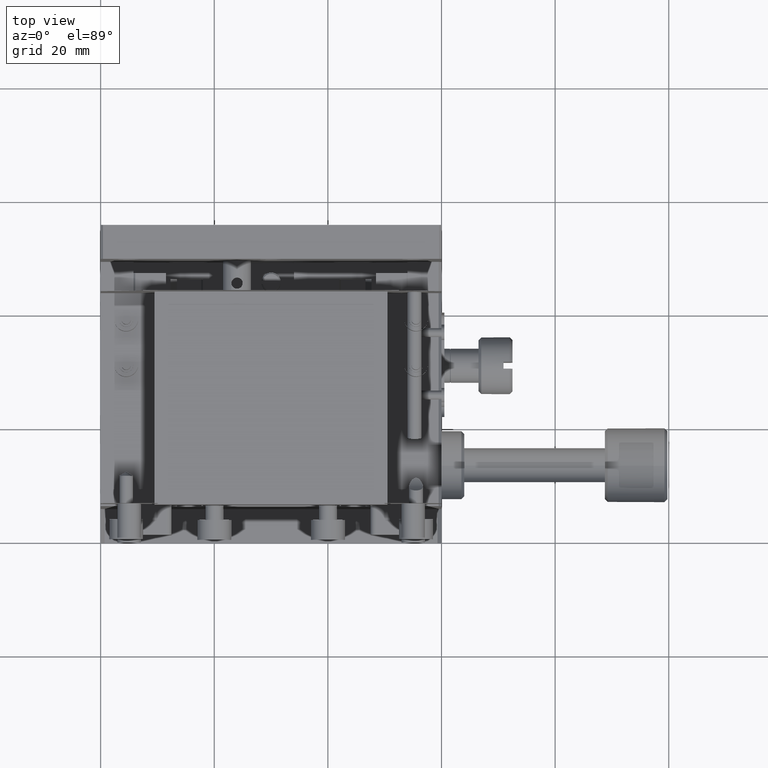
[diagram: clean part render]
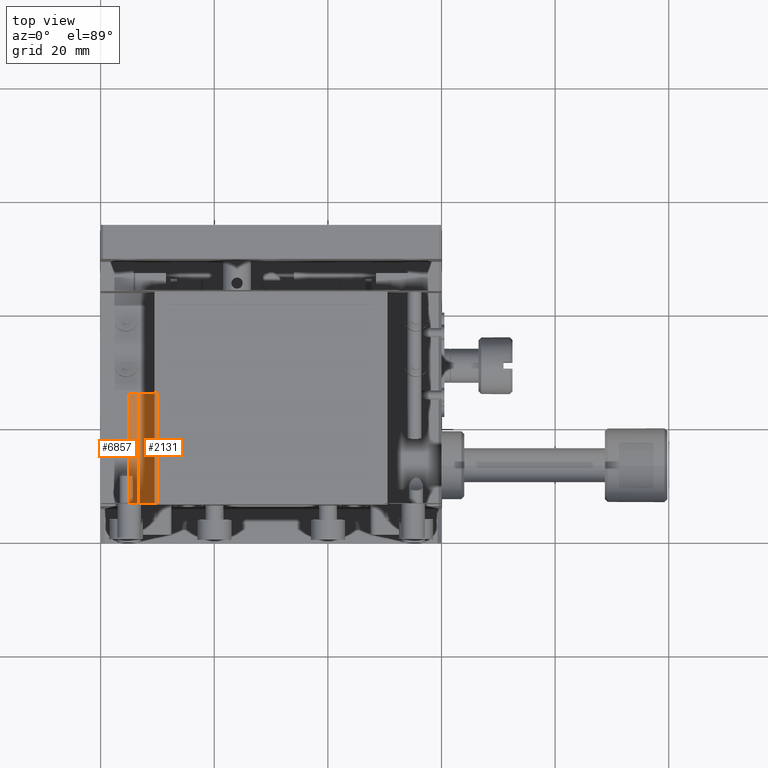
[diagram: same view with one multi-face feature highlighted, each face labeled with its STEP entity id]
A machine part, top view. The highlighted faces form ONE feature: a constant-radius fillet chain: 2 tangent blend faces with common blend radius 5 mm. The faces share edges in the B-rep.
Their STEP definitions:
[1] entity #2131 (Cylinder):
#131 = CARTESIAN_POINT ( 'NONE',  ( 5.000000000000000000, 25.50000000000000355, -4.999912287068750238 ) ) ;
#165 = AXIS2_PLACEMENT_3D ( 'NONE', #131, #1061, #10888 ) ;
#1061 = DIRECTION ( 'NONE',  ( 0.000000000000000000, -1.000000000000000000, 0.000000000000000000 ) ) ;
#1085 = ORIENTED_EDGE ( 'NONE', *, *, #5131, .T. ) ;
#1125 = EDGE_CURVE ( 'NONE', #11560, #10061, #11337, .T. ) ;
#1685 = CARTESIAN_POINT ( 'NONE',  ( 10.00000000000000000, 25.50000000000000355, -4.999912286938879014 ) ) ;
#1870 = CYLINDRICAL_SURFACE ( 'NONE', #2854, 5.000000000000000000 ) ;
#1951 = ORIENTED_EDGE ( 'NONE', *, *, #5440, .T. ) ;
#2095 = DIRECTION ( 'NONE',  ( 3.469446951953614189E-15, 0.000000000000000000, -1.000000000000000000 ) ) ;
#2118 = AXIS2_PLACEMENT_3D ( 'NONE', #7321, #7439, #2095 ) ;
#2131 = ADVANCED_FACE ( 'NONE', ( #2584 ), #1870, .T. ) ;
#2399 = CARTESIAN_POINT ( 'NONE',  ( 6.600000014693935491, 25.50000000000000355, -9.736999995036528688 ) ) ;
#2584 = FACE_OUTER_BOUND ( 'NONE', #3017, .T. ) ;
#2591 = VERTEX_POINT ( 'NONE', #2399 ) ;
#2732 = VERTEX_POINT ( 'NONE', #1685 ) ;
#2793 = EDGE_CURVE ( 'NONE', #2732, #11560, #10219, .T. ) ;
#2854 = AXIS2_PLACEMENT_3D ( 'NONE', #9935, #10777, #5403 ) ;
#3017 = EDGE_LOOP ( 'NONE', ( #7105, #5356, #1085, #1951 ) ) ;
#3416 = VECTOR ( 'NONE', #8326, 1000.000000000000000 ) ;
#4617 = CARTESIAN_POINT ( 'NONE',  ( 6.600000014719038965, 25.50000000000000355, -9.736999995028048360 ) ) ;
#5131 = EDGE_CURVE ( 'NONE', #10061, #2591, #10919, .T. ) ;
#5210 = CIRCLE ( 'NONE', #165, 5.000000000000000000 ) ;
#5356 = ORIENTED_EDGE ( 'NONE', *, *, #1125, .T. ) ;
#5403 = DIRECTION ( 'NONE',  ( 0.000000000000000000, 0.000000000000000000, -1.000000000000000000 ) ) ;
#5440 = EDGE_CURVE ( 'NONE', #2591, #2732, #5210, .T. ) ;
#6761 = CARTESIAN_POINT ( 'NONE',  ( 6.600000014693935491, 5.999999999999998224, -9.736999995036528688 ) ) ;
#7087 = VECTOR ( 'NONE', #10030, 1000.000000000000000 ) ;
#7105 = ORIENTED_EDGE ( 'NONE', *, *, #2793, .T. ) ;
#7321 = CARTESIAN_POINT ( 'NONE',  ( 5.000000000000000000, 5.999999999999998224, -4.999912287068750238 ) ) ;
#7439 = DIRECTION ( 'NONE',  ( -0.000000000000000000, 1.000000000000000000, -0.000000000000000000 ) ) ;
#8326 = DIRECTION ( 'NONE',  ( 0.000000000000000000, -1.000000000000000000, 0.000000000000000000 ) ) ;
#9279 = CARTESIAN_POINT ( 'NONE',  ( 10.00000000000000000, 25.50000000000000355, -4.999912286809009565 ) ) ;
#9935 = CARTESIAN_POINT ( 'NONE',  ( 5.000000000000000000, 25.50000000000000355, -4.999912287068750238 ) ) ;
#10030 = DIRECTION ( 'NONE',  ( -0.000000000000000000, 1.000000000000000000, -0.000000000000000000 ) ) ;
#10061 = VERTEX_POINT ( 'NONE', #6761 ) ;
#10219 = LINE ( 'NONE', #9279, #3416 ) ;
#10777 = DIRECTION ( 'NONE',  ( 0.000000000000000000, -1.000000000000000000, 0.000000000000000000 ) ) ;
#10888 = DIRECTION ( 'NONE',  ( 0.000000000000000000, 0.000000000000000000, -1.000000000000000000 ) ) ;
#10919 = LINE ( 'NONE', #4617, #7087 ) ;
#11337 = CIRCLE ( 'NONE', #2118, 5.000000000000000000 ) ;
#11534 = CARTESIAN_POINT ( 'NONE',  ( 10.00000000000000000, 5.999999999999998224, -4.999912286938879014 ) ) ;
#11560 = VERTEX_POINT ( 'NONE', #11534 ) ;
[2] entity #6857 (Cylinder):
#878 = CYLINDRICAL_SURFACE ( 'NONE', #1552, 4.999999999999960032 ) ;
#1219 = DIRECTION ( 'NONE',  ( 0.000000000000000000, 0.000000000000000000, -1.000000000000000000 ) ) ;
#1546 = VECTOR ( 'NONE', #3555, 1000.000000000000000 ) ;
#1552 = AXIS2_PLACEMENT_3D ( 'NONE', #4452, #10751, #3909 ) ;
#1663 = ORIENTED_EDGE ( 'NONE', *, *, #9363, .T. ) ;
#2399 = CARTESIAN_POINT ( 'NONE',  ( 6.600000014693935491, 25.50000000000000355, -9.736999995036528688 ) ) ;
#2591 = VERTEX_POINT ( 'NONE', #2399 ) ;
#3528 = VERTEX_POINT ( 'NONE', #6221 ) ;
#3555 = DIRECTION ( 'NONE',  ( -0.000000000000000000, 1.000000000000000000, 0.000000000000000000 ) ) ;
#3909 = DIRECTION ( 'NONE',  ( 0.000000000000000000, 0.000000000000000000, -1.000000000000000000 ) ) ;
#4073 = CIRCLE ( 'NONE', #6311, 4.999999999999960032 ) ;
#4391 = EDGE_CURVE ( 'NONE', #10061, #6272, #4073, .T. ) ;
#4452 = CARTESIAN_POINT ( 'NONE',  ( 4.999740333572169959, 25.50000000000000355, -5.000000000000039968 ) ) ;
#4617 = CARTESIAN_POINT ( 'NONE',  ( 6.600000014719038965, 25.50000000000000355, -9.736999995028048360 ) ) ;
#4651 = ORIENTED_EDGE ( 'NONE', *, *, #8216, .F. ) ;
#4997 = CARTESIAN_POINT ( 'NONE',  ( 4.999740323590574853, 5.999999999999998224, -10.00000000000000000 ) ) ;
#5131 = EDGE_CURVE ( 'NONE', #10061, #2591, #10919, .T. ) ;
#5331 = FACE_OUTER_BOUND ( 'NONE', #8683, .T. ) ;
#5808 = DIRECTION ( 'NONE',  ( -0.000000000000000000, 1.000000000000000000, -0.000000000000000000 ) ) ;
#6191 = LINE ( 'NONE', #11517, #1546 ) ;
#6221 = CARTESIAN_POINT ( 'NONE',  ( 4.999740323590574853, 25.50000000000000355, -10.00000000000000000 ) ) ;
#6272 = VERTEX_POINT ( 'NONE', #4997 ) ;
#6311 = AXIS2_PLACEMENT_3D ( 'NONE', #7459, #5808, #6644 ) ;
#6617 = CARTESIAN_POINT ( 'NONE',  ( 4.999740333572169959, 25.50000000000000355, -5.000000000000039968 ) ) ;
#6644 = DIRECTION ( 'NONE',  ( 0.000000000000000000, 0.000000000000000000, -1.000000000000000000 ) ) ;
#6761 = CARTESIAN_POINT ( 'NONE',  ( 6.600000014693935491, 5.999999999999998224, -9.736999995036528688 ) ) ;
#6857 = ADVANCED_FACE ( 'NONE', ( #5331 ), #878, .T. ) ;
#7087 = VECTOR ( 'NONE', #10030, 1000.000000000000000 ) ;
#7459 = CARTESIAN_POINT ( 'NONE',  ( 4.999740333572169959, 5.999999999999998224, -5.000000000000039968 ) ) ;
#8216 = EDGE_CURVE ( 'NONE', #2591, #3528, #10731, .T. ) ;
#8401 = ORIENTED_EDGE ( 'NONE', *, *, #5131, .F. ) ;
#8647 = AXIS2_PLACEMENT_3D ( 'NONE', #6617, #9276, #1219 ) ;
#8683 = EDGE_LOOP ( 'NONE', ( #8401, #10383, #1663, #4651 ) ) ;
#9276 = DIRECTION ( 'NONE',  ( -0.000000000000000000, 1.000000000000000000, -0.000000000000000000 ) ) ;
#9363 = EDGE_CURVE ( 'NONE', #6272, #3528, #6191, .T. ) ;
#10030 = DIRECTION ( 'NONE',  ( -0.000000000000000000, 1.000000000000000000, -0.000000000000000000 ) ) ;
#10061 = VERTEX_POINT ( 'NONE', #6761 ) ;
#10383 = ORIENTED_EDGE ( 'NONE', *, *, #4391, .T. ) ;
#10731 = CIRCLE ( 'NONE', #8647, 4.999999999999960032 ) ;
#10751 = DIRECTION ( 'NONE',  ( 0.000000000000000000, -1.000000000000000000, 0.000000000000000000 ) ) ;
#10919 = LINE ( 'NONE', #4617, #7087 ) ;
#11517 = CARTESIAN_POINT ( 'NONE',  ( 4.999740313608979747, 25.50000000000000355, -10.00000000000000000 ) ) ;